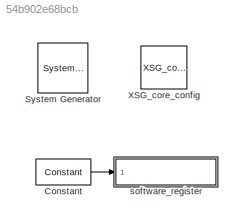
MODEL slx_54b902e68bcb
KIND model
BLOCK [Reference]  System Generator  REF=xbsIndex_r4/ System Generator
  AttributesFormatString = System\nGenerator
  Impl_file = ISE Defaults
  Ports = []
  SourceBlock = xbsIndex_r4/ System Generator
  SourceType = Xilinx System Generator Block
  Synth_file = XST Defaults
  Tag = genX
  UserDataPersistent = on
  block_type = sysgen
  clock_wrapper = Clock Enables
  core_generation = According to Block Masks
  dbl_ovrd = According to Block Masks
  dcm_input_clock_period = 100
  deprecated_control = off
  directory = ./minimal/sysgen
  eval_field = 0
  has_advanced_control = 0
  incr_netlist = off
  infoedit = System Generator
  package = ff1136
  part = xc5vsx95t
  proj_type = Project Navigator
  run_coregen = off
  sg_icon_stat = 50,50,0,0,token,white,0,58c5b5770fe5f7c311f53dbc6e73f0f6,right,,[ ],[ ]
  sg_mask_display = fprintf('','COMMENT: begin icon graphics');\npatch([0 50 50 0 0 ],[0 0 50 50 0 ],[1 1 1 ]);\npatch([1.6375 16.81 27.31 37.81 48.31 27.31 12.1375 1.6375 ],[36.655 36.655 47.155 36.655 47.155 47.155 47.155 36.655 ],[0.933333 0.203922 0.141176 ]);\npatch([12.1375 27.31 16.81 1.6375 12.1375 ],[26.155 26.155 36.655 36.655 26.155 ],[0.698039 0.0313725 0.219608 ]);\npatch([1.6375 16.81 27.31 12.1375 1.6375 ]...<+327ch>
  sggui_pos = 326,212,464,470
  simulink_period = 1
  speed = -1
  synthesis_tool = XST
  sysclk_period = 10
  testbench = off
  trim_vbits = Everywhere in SubSystem
  xilinxfamily = virtex5
BLOCK [Reference] Constant  REF=xbsIndex_r4/Constant
  Ports = [0, 1]
  SourceBlock = xbsIndex_r4/Constant
  SourceType = Xilinx Constant Block Block
  arith_type = Unsigned
  bin_pt = 0
  block_type = constant
  carry = CIN
  const = 1
  dbl_ovrd = off
  dsp48_infoedit = The use of this block for DSP48 instructions is deprecated.  Please use the Opmode block.
  equ = P=C
  exp_width = 8
  explicit_period = on
  frac_width = 24
  gui_display_data_type = Fixed-point
  has_advanced_control = 0
  inp1 = P
  inp2 = PCIN>>17
  n_bits = 32
  opr = +
  opselect = C
  period = 1
  preci_type = Single
  sg_icon_stat = 55,26,0,1,white,blue,0,1c72b5be,right,,[ ],[ ]
  sg_mask_display = fprintf('','COMMENT: begin icon graphics');\npatch([0 55 55 0 0 ],[0 0 26 26 0 ],[0.77 0.82 0.91 ]);\nplot([0 55 55 0 0 ],[0 0 26 26 0 ]);\npatch([20.325 24.66 27.66 30.66 33.66 27.66 23.325 20.325 ],[16.33 16.33 19.33 16.33 19.33 19.33 19.33 16.33 ],[1 1 1 ]);\npatch([23.325 27.66 24.66 20.325 23.325 ],[13.33 13.33 16.33 16.33 13.33 ],[0.931 0.946 0.973 ]);\npatch([20.325 24.66 27.66 23.325 20.325 ],[...<+323ch>
  sggui_pos = 407,14,368,482
BLOCK [Reference] XSG_core_config  REF=xps_library/XSG_core_config  (lib defined in mdl_00b5cec29cd0, mdl_02ab6ecaa3d1, +5 more)
  MKDIG_clk_src = sys_clk
  Ports = []
  ROACH2_clk_src = sys_clk
  ROACH_clk_src = sys_clk
  SourceBlock = xps_library/XSG_core_config
  SourceType = xsg core config
  Tag = xps:xsg
  clk_rate = 100
  clk_src = sys_clk
  hw_sys = ROACH:sx95t
  sample_period = 1
  synthesis_tool = XST
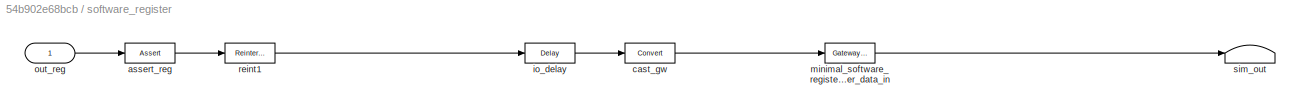
BLOCK [SubSystem] software_register
  AncestorBlock = xps_library/software_register
  AttributesFormatString = 1output:uf32.0 = 32 bits
  FunctionWithSeparateData = off
  MaskHideContents = off
  MinAlgLoopOccurrences = off
  Opaque = off
  Ports = [1]
  PropExecContextOutsideSubsystem = off
  RTWSystemCode = Auto
  RequestExecContextInheritance = off
  Tag = xps:sw_reg
BLOCK [Reference] software_register/assert_reg  REF=xbsIndex_r4/Assert
  Ports = [1, 1]
  SourceBlock = xbsIndex_r4/Assert
  SourceType = Xilinx Assert Block
  arith_type = Unsigned
  assert_rate = off
  assert_type = on
  bin_pt = 0
  block_type = assert
  exp_width = 8
  frac_width = 24
  gui_display_data_type = Fixed-point
  has_advanced_control = 0
  infoedit = Asserts a user-defined sample rate and/or type on a signal.<br><br>Hardware notes: In hardware this block costs nothing.
  n_bits = 32
  output_port = on
  period = 1
  preci_type = Single
  rate_source = Explicitly
  sg_icon_stat = 50,20,1,1,white,blue,0,9657e937,right,,[ ],[ ]
  sg_mask_display = fprintf('','COMMENT: begin icon graphics');\npatch([0 50 50 0 0 ],[0 0 20 20 0 ],[0.77 0.82 0.91 ]);\nplot([0 50 50 0 0 ],[0 0 20 20 0 ]);\npatch([20.55 23.44 25.44 27.44 29.44 25.44 22.55 20.55 ],[12.22 12.22 14.22 12.22 14.22 14.22 14.22 12.22 ],[1 1 1 ]);\npatch([22.55 25.44 23.44 20.55 22.55 ],[10.22 10.22 12.22 12.22 10.22 ],[0.931 0.946 0.973 ]);\npatch([20.55 23.44 25.44 22.55 20.55 ],[8.22 8.22...<+295ch>
  sggui_pos = -1,-1,-1,-1
  type_source = Explicitly
BLOCK [Reference] software_register/cast_gw  REF=xbsIndex_r4/Convert
  Ports = [1, 1]
  SourceBlock = xbsIndex_r4/Convert
  SourceType = Xilinx Type Converter Block
  arith_type = Unsigned
  bin_pt = 0
  block_type = convert
  dbl_ovrd = off
  en = off
  exp_bits = 8
  float_type = Single
  fraction_bits = 24
  gui_display_data_type = Fixed-point
  has_advanced_control = 0
  infoedit = Hardware notes: rounding and saturating require hardware resources; truncating and wrapping do not.
  latency = 0
  n_bits = 32
  overflow = Wrap
  pipeline = off
  quantization = Truncate
  sg_icon_stat = 50,20,1,1,white,blue,0,edca21da,right,,[ ],[ ]
  sg_mask_display = fprintf('','COMMENT: begin icon graphics');\npatch([0 50 50 0 0 ],[0 0 20 20 0 ],[0.77 0.82 0.91 ]);\nplot([0 50 50 0 0 ],[0 0 20 20 0 ]);\npatch([20.55 23.44 25.44 27.44 29.44 25.44 22.55 20.55 ],[12.22 12.22 14.22 12.22 14.22 14.22 14.22 12.22 ],[1 1 1 ]);\npatch([22.55 25.44 23.44 20.55 22.55 ],[10.22 10.22 12.22 12.22 10.22 ],[0.931 0.946 0.973 ]);\npatch([20.55 23.44 25.44 22.55 20.55 ],[8.22 8.22...<+309ch>
  sggui_pos = -1,-1,-1,-1
  xl_area = [0,0,0,0,0,0,0]
  xl_use_area = off
BLOCK [Reference] software_register/io_delay  REF=xbsIndex_r4/Delay
  Ports = [1, 1]
  SourceBlock = xbsIndex_r4/Delay
  SourceType = Xilinx Delay Block
  block_type = delay
  dbl_ovrd = off
  en = off
  has_advanced_control = 0
  infoedit = Hardware notes: A delay line is a chain, each link of which is an SRL16 followed by a flip-flop.
  infoeditControl = Selection of Reset will increase slice count due to use of real FFs and instead of SRLs
  latency = 0
  reg_retiming = on
  rst = off
  sg_icon_stat = 50,20,1,1,white,blue,0,24450e6f,right,,[ ],[ ]
  sg_mask_display = fprintf('','COMMENT: begin icon graphics');\npatch([0 50 50 0 0 ],[0 0 20 20 0 ],[0.77 0.82 0.91 ]);\nplot([0 50 50 0 0 ],[0 0 20 20 0 ]);\npatch([20.55 23.44 25.44 27.44 29.44 25.44 22.55 20.55 ],[12.22 12.22 14.22 12.22 14.22 14.22 14.22 12.22 ],[1 1 1 ]);\npatch([22.55 25.44 23.44 20.55 22.55 ],[10.22 10.22 12.22 12.22 10.22 ],[0.931 0.946 0.973 ]);\npatch([20.55 23.44 25.44 22.55 20.55 ],[8.22 8.22...<+310ch>
  sggui_pos = -1,-1,-1,-1
  xl_area = [0,0,0,0,0,0,0]
  xl_use_area = off
BLOCK [Reference] software_register/minimal_software_register_user_data_in  REF=xbsIndex_r4/Gateway Out
  DACChannel = '1'
  LOCs = {}
  Ports = [1, 1]
  SourceBlock = xbsIndex_r4/Gateway Out
  SourceType = Xilinx Gateway Out Block
  UseAsDAC = off
  block_type = gatewayout
  has_advanced_control = 0
  hdl_port = on
  infoedit = Gateway out block.  Converts Xilinx fixed-point or floating-point type inputs into ouputs of type Simulink integer, single, double, or fixed-point.<br><br>Hardware notes:  In hardware these blocks become top level output ports or are discarded, depending on how they are configured.
  inherit_from_input = off
  locs_specified = off
  sg_icon_stat = 50,20,1,1,white,yellow,1,cc31b7ac,right,,[ ],[ ]
  sg_mask_display = fprintf('','COMMENT: begin icon graphics');\npatch([0 50 50 0 0 ],[0 0 20 20 0 ],[0.95 0.93 0.65 ]);\nplot([0 50 50 0 0 ],[0 0 20 20 0 ]);\npatch([20.55 23.44 25.44 27.44 29.44 25.44 22.55 20.55 ],[12.22 12.22 14.22 12.22 14.22 14.22 14.22 12.22 ],[1 1 1 ]);\npatch([22.55 25.44 23.44 20.55 22.55 ],[10.22 10.22 12.22 12.22 10.22 ],[0.985 0.979 0.895 ]);\npatch([20.55 23.44 25.44 22.55 20.55 ],[8.22 8.22...<+384ch>
  sggui_pos = -1,-1,-1,-1
  timing_constraint = None
  xl_area = [0,0,0,0,0,0,0]
  xl_use_area = off
BLOCK [Inport] software_register/out_reg
  IconDisplay = Port number
BLOCK [Reference] software_register/reint1  REF=xbsIndex_r4/Reinterpret
  Ports = [1, 1]
  SourceBlock = xbsIndex_r4/Reinterpret
  SourceType = Xilinx Type Reinterpreter Block
  arith_type = Unsigned
  bin_pt = 0
  block_type = reinterpret
  force_arith_type = on
  force_bin_pt = on
  has_advanced_control = 0
  infoedit = Changes signal type without altering the binary representation.   You can change the signal between signed and unsigned, and relocate the binary point.<br><br>Hardware notes: In hardware this block costs nothing.<br><br>Example:  Suppose the input is 6 bits wide, signed, with 2 fractional bits, and the output is forced to unsigned with 0 fractional bits.  Then an input of -2.0 (1110.00 in binary 2...<+58ch>
  sg_icon_stat = 50,20,1,1,white,blue,0,6b04d0b0,right,,[ ],[ ]
  sg_mask_display = fprintf('','COMMENT: begin icon graphics');\npatch([0 50 50 0 0 ],[0 0 20 20 0 ],[0.77 0.82 0.91 ]);\nplot([0 50 50 0 0 ],[0 0 20 20 0 ]);\npatch([20.55 23.44 25.44 27.44 29.44 25.44 22.55 20.55 ],[12.22 12.22 14.22 12.22 14.22 14.22 14.22 12.22 ],[1 1 1 ]);\npatch([22.55 25.44 23.44 20.55 22.55 ],[10.22 10.22 12.22 12.22 10.22 ],[0.931 0.946 0.973 ]);\npatch([20.55 23.44 25.44 22.55 20.55 ],[8.22 8.22...<+300ch>
  sggui_pos = -1,-1,-1,-1
BLOCK [Terminator] software_register/sim_out
LINE Constant:1 -> software_register:1
